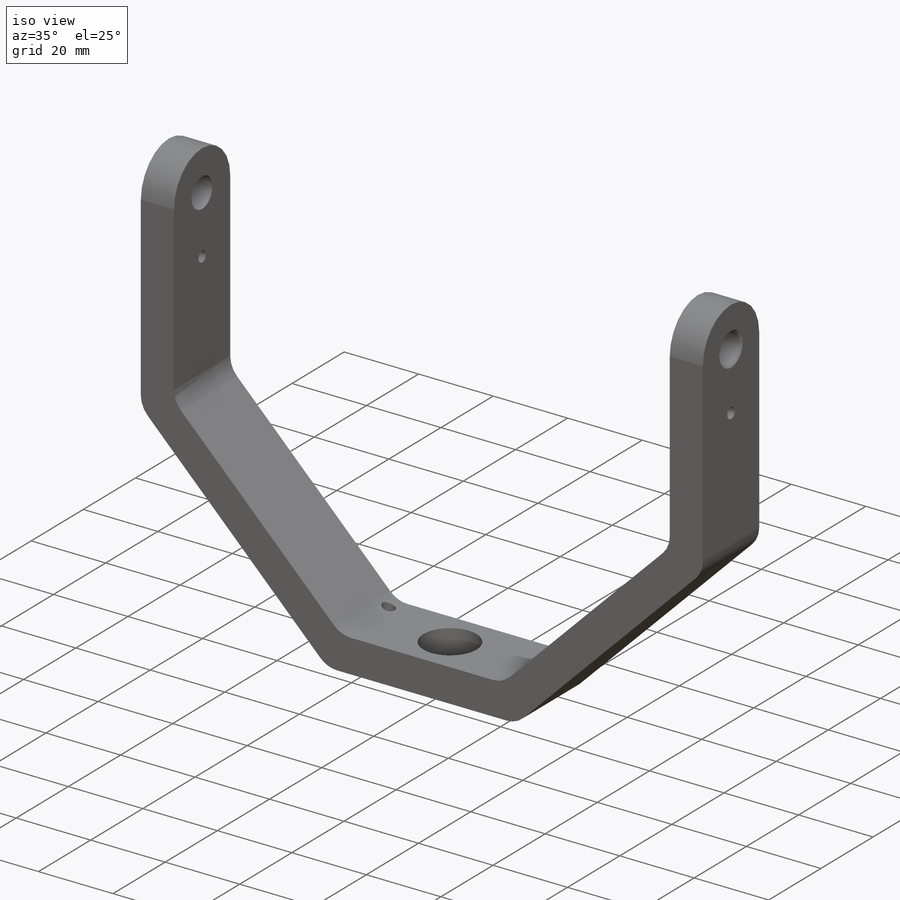
[diagram: iso view]
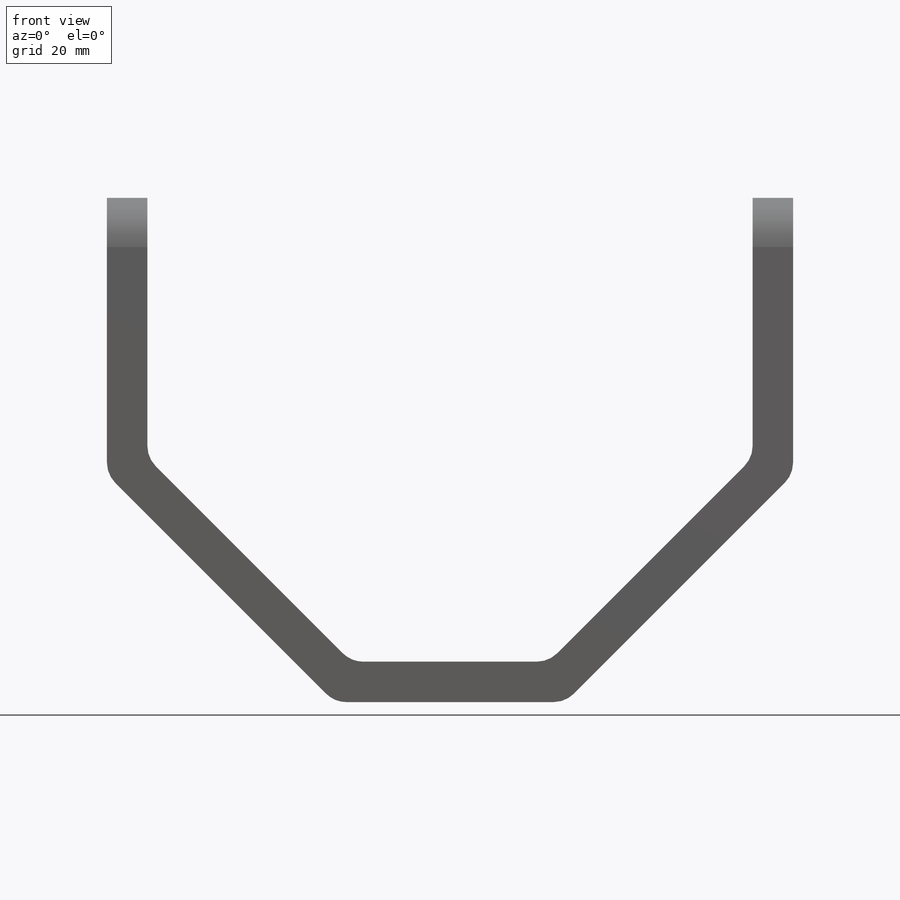
[diagram: front view]
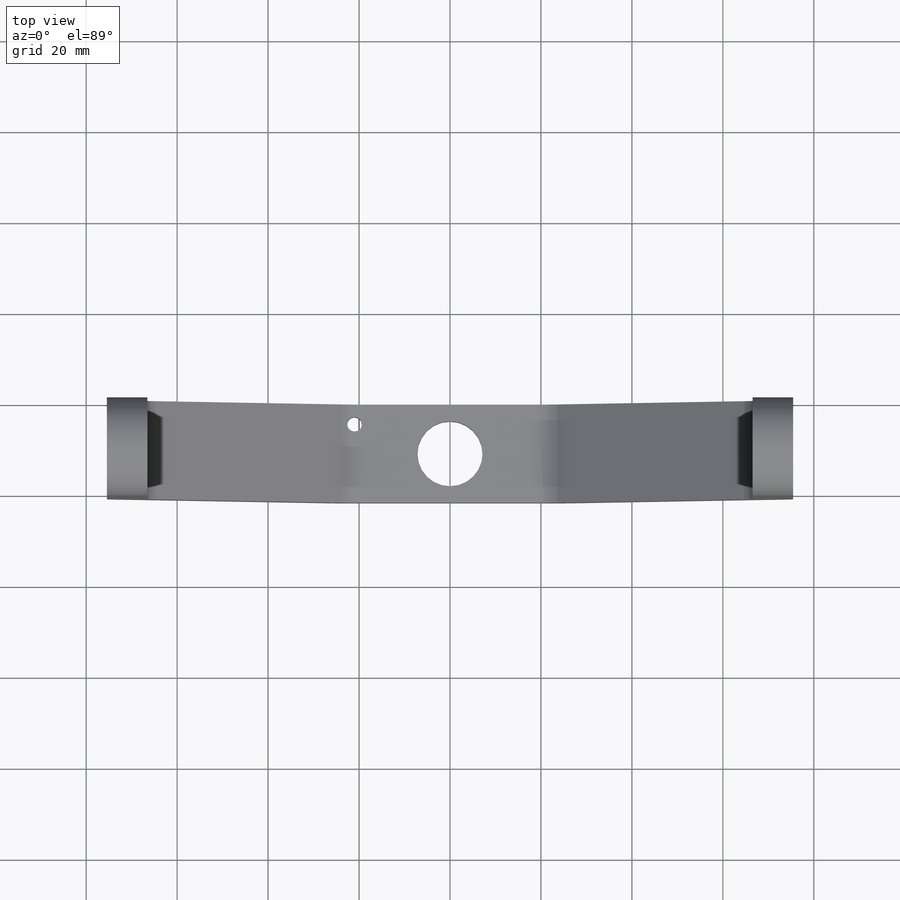
[diagram: top view]
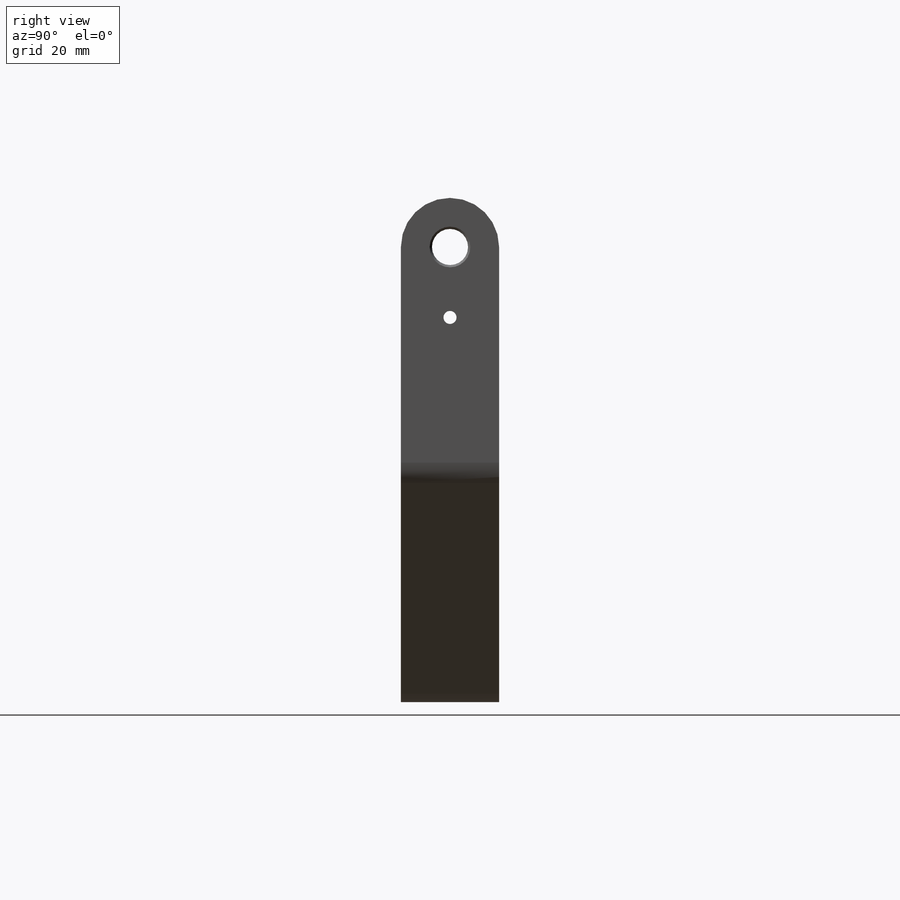
[diagram: right view]
SOLIDWORKS PART (.sldprt)
format: sldprt  version: not decoded by parser v0  size: 327,680 bytes
history: native  units: mm
features: sketch x5, fillet x4, cut_extrude x4, chamfer x2, material x1, extrude x1 (+13 scaffold rows collapsed)
feature tree (30):
  scaffold x13  (default folders/planes/origin — collapsed)
  material  "AISI 1020 Steel, Cold Rolled"
  sketch  "Sketch1"  dims[c1.D1=66.548mm c1.D2=8.89mm c1.D3=8.89mm c1.D4=~80.255462mm c2.D4=135.0deg c2.D5=57.15mm c2.D6=25.4mm c2.D7=8.89mm c2.D8=8.89mm c2.D9=57.15mm]
  extrude  "Boss-Extrude2"  Depth=21.59mm
  fillet  "Fillet3"  [1 undecoded]
  fillet  "Fillet4"  [1 undecoded]
  sketch  "Sketch3"  dims[D1=7.9375mm]
  cut_extrude  "Cut-Extrude1"  [1 undecoded]
  fillet  "Fillet1"  Radius=6.35mm
  fillet  "Fillet2"  Radius=6.35mm
  sketch  "Sketch4"  dims[D1=14.2875mm]
  chamfer  "Chamfer3"  Distance=0.508mm Angle=45deg
  sketch  "Sketch15"  dims[c1.D3=3.175mm c1.D1=4.318mm c1.D2=1.778mm c2.D1=0.254mm]
  cut_extrude  "Cut-Extrude2"  [1 undecoded]
  cut_extrude  "Cut-Extrude6"  [1 undecoded]
  chamfer  "Chamfer4"  Distance=0.508mm Angle=45deg
  sketch  "Sketch16"  dims[c1.D1=2.8702mm c1.D2=11.43mm c1.D3=84.582mm c2.D2=15.494mm]
  cut_extrude  "Cut-Extrude7"  [1 undecoded]
decode coverage: 10 of 16 modeling features carry decoded parameters
note: ~ marks probable driven/reference dimensions
note: 6 parameter values undecoded
summary: no parameter record found for 6 features
note: suppression state not decoded; provenance and decode notes live in map.json
